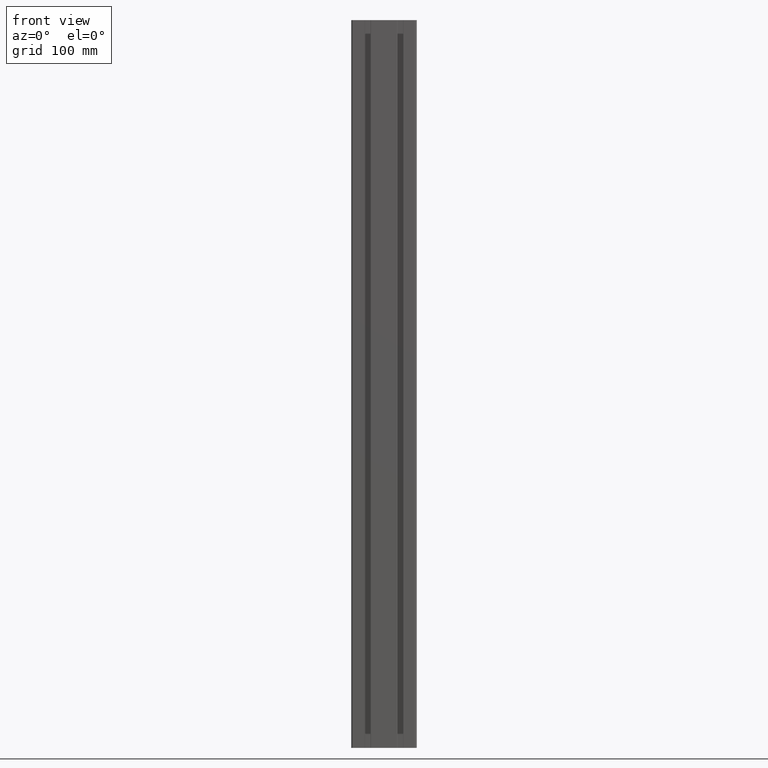
[diagram: clean part render]
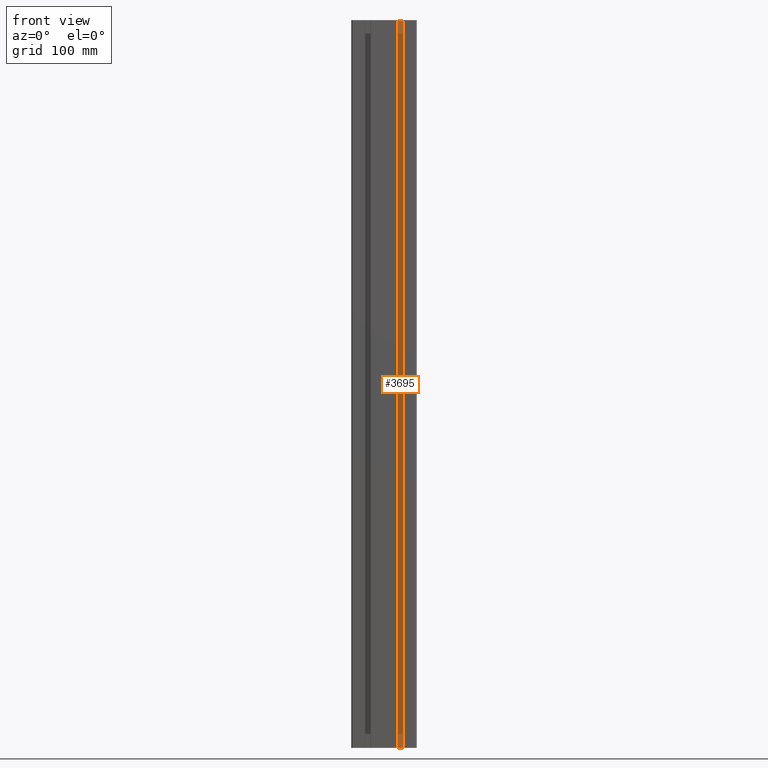
[diagram: same view with one face highlighted and labeled with its STEP entity id]
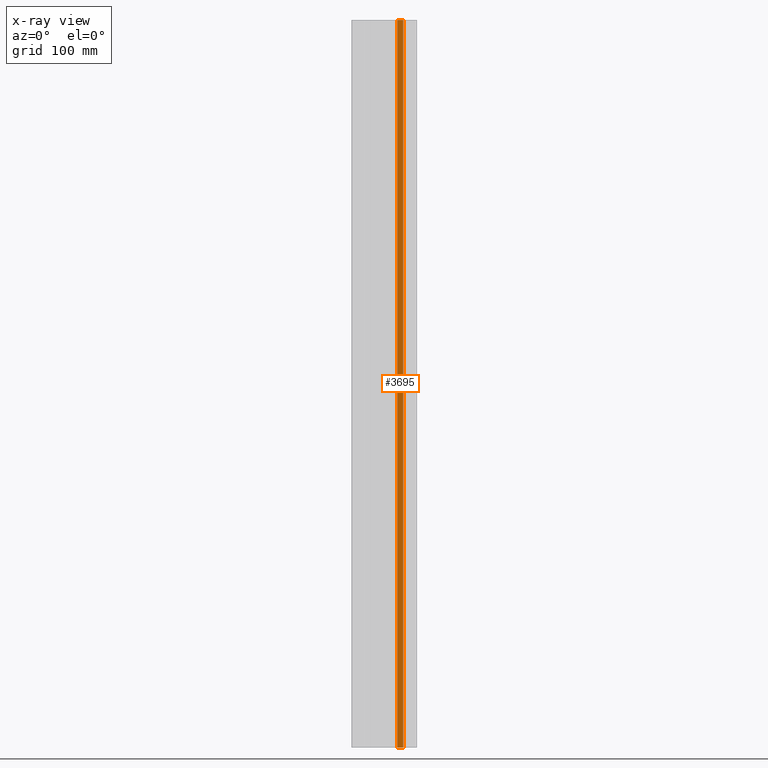
[diagram: x-ray of the same camera — body ghosted, the highlighted face saturated]
A machine part, front view. The second image highlights one B-rep face of the part: STEP entity #3695.
The next image is the same camera in x-ray: the body ghosted, the highlighted face saturated — about 0% of this face is hidden behind the body in this view.
In plain terms, the highlighted planar face has unit normal (0, -1, 0).
Its self-contained STEP definition (entity closure, byte-faithful):
#80=PLANE('',#4078);
#229=FACE_OUTER_BOUND('',#431,.T.);
#431=EDGE_LOOP('',(#3151,#3152,#3153,#3154));
#631=LINE('',#5610,#1017);
#763=LINE('',#6071,#1149);
#817=LINE('',#6215,#1203);
#818=LINE('',#6217,#1204);
#1017=VECTOR('',#4476,10.);
#1149=VECTOR('',#4834,10.);
#1203=VECTOR('',#5006,10.);
#1204=VECTOR('',#5009,10.);
#1588=VERTEX_POINT('',#5607);
#1589=VERTEX_POINT('',#5609);
#1804=VERTEX_POINT('',#6068);
#1805=VERTEX_POINT('',#6070);
#1996=EDGE_CURVE('',#1589,#1588,#631,.T.);
#2232=EDGE_CURVE('',#1804,#1805,#763,.T.);
#2305=EDGE_CURVE('',#1588,#1805,#817,.T.);
#2306=EDGE_CURVE('',#1589,#1804,#818,.T.);
#3151=ORIENTED_EDGE('',*,*,#1996,.T.);
#3152=ORIENTED_EDGE('',*,*,#2305,.T.);
#3153=ORIENTED_EDGE('',*,*,#2232,.F.);
#3154=ORIENTED_EDGE('',*,*,#2306,.F.);
#3695=ADVANCED_FACE('',(#229),#80,.T.);
#4078=AXIS2_PLACEMENT_3D('',#6216,#5007,#5008);
#4476=DIRECTION('',(1.,0.,0.));
#4834=DIRECTION('',(1.,0.,0.));
#5006=DIRECTION('',(0.,0.,1.));
#5007=DIRECTION('center_axis',(0.,-1.,0.));
#5008=DIRECTION('ref_axis',(1.,0.,0.));
#5009=DIRECTION('',(0.,0.,1.));
#5607=CARTESIAN_POINT('',(26.45,-6.75,0.));
#5609=CARTESIAN_POINT('',(18.55,-6.75,0.));
#5610=CARTESIAN_POINT('',(18.55,-6.75,0.));
#6068=CARTESIAN_POINT('',(18.55,-6.75,1000.));
#6070=CARTESIAN_POINT('',(26.45,-6.75,1000.));
#6071=CARTESIAN_POINT('',(18.55,-6.75,1000.));
#6215=CARTESIAN_POINT('',(26.45,-6.75,0.));
#6216=CARTESIAN_POINT('Origin',(18.55,-6.75,0.));
#6217=CARTESIAN_POINT('',(18.55,-6.75,0.));